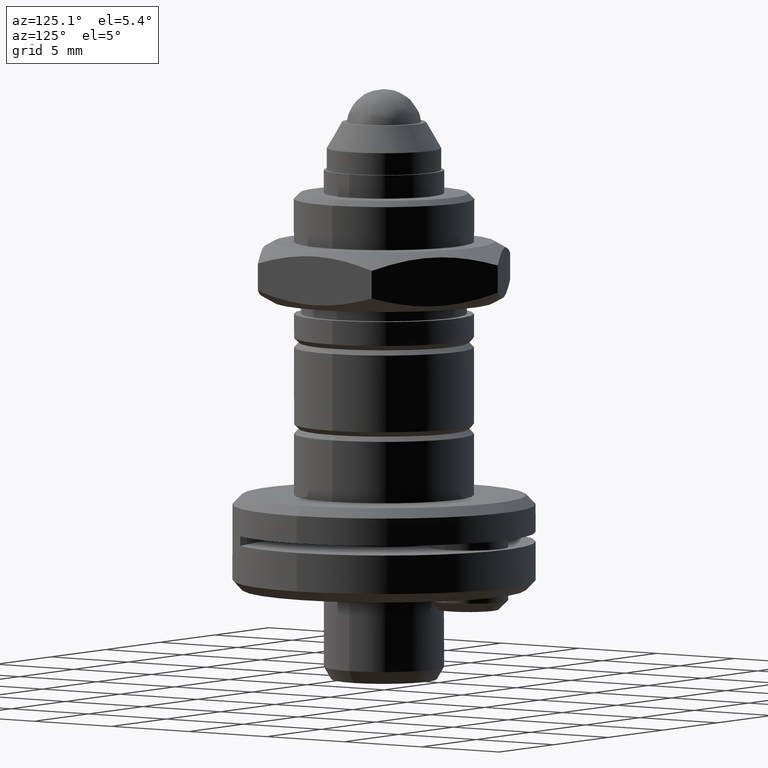
[diagram: clean part render]
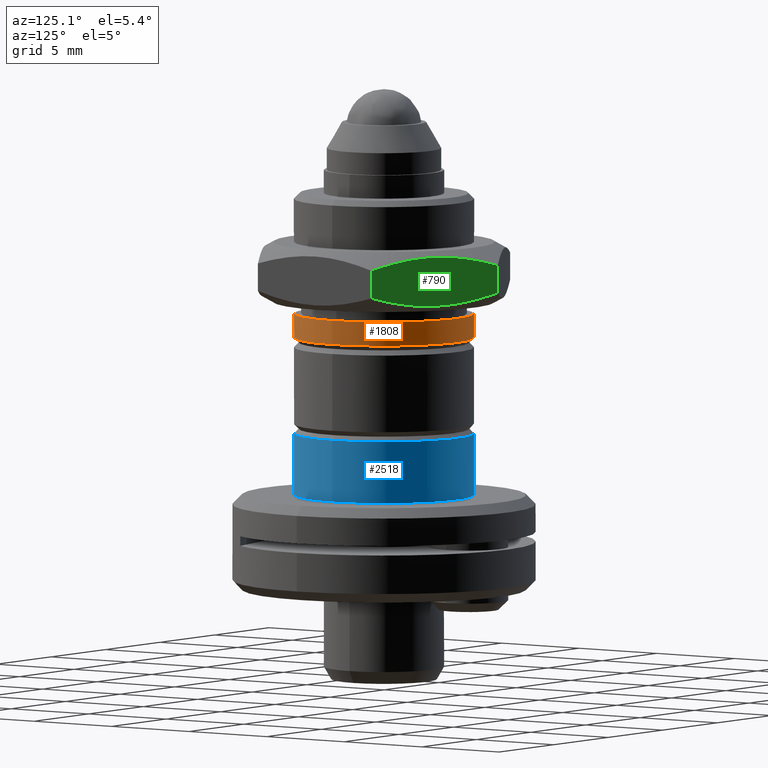
[diagram: same view with three faces highlighted in distinct colors, each labeled with its STEP entity id]
A machine part, auxiliary view with three faces highlighted in distinct colors.
Their STEP definitions:

[orange] entity #1808 — the highlighted cylindrical surface (bore or boss wall) has radius 4.7498 mm, axis along (0, 0, 1).
#17 = DIRECTION ( 'NONE',  ( 0.000000000000000000, -1.000000000000000000, 0.000000000000000000 ) ) ;
#121 = CYLINDRICAL_SURFACE ( 'NONE', #2018, 4.749800000000000466 ) ;
#133 = FACE_OUTER_BOUND ( 'NONE', #2351, .T. ) ;
#309 = EDGE_CURVE ( 'NONE', #2420, #2420, #1154, .T. ) ;
#380 = DIRECTION ( 'NONE',  ( 1.000000000000000000, 0.000000000000000000, 0.000000000000000000 ) ) ;
#431 = CARTESIAN_POINT ( 'NONE',  ( 0.000000000000000000, 0.000000000000000000, -13.15720000002329471 ) ) ;
#497 = CARTESIAN_POINT ( 'NONE',  ( 0.000000000000000000, 0.000000000000000000, -11.88719999999999999 ) ) ;
#677 = DIRECTION ( 'NONE',  ( 1.000000000000000000, 0.000000000000000000, 0.000000000000000000 ) ) ;
#845 = EDGE_CURVE ( 'NONE', #1375, #1375, #1765, .T. ) ;
#862 = DIRECTION ( 'NONE',  ( -0.000000000000000000, -0.000000000000000000, -1.000000000000000000 ) ) ;
#969 = CARTESIAN_POINT ( 'NONE',  ( 0.000000000000000000, -4.749799999956394458, -13.15720000002329471 ) ) ;
#1079 = AXIS2_PLACEMENT_3D ( 'NONE', #497, #2101, #677 ) ;
#1141 = EDGE_LOOP ( 'NONE', ( #2283 ) ) ;
#1154 = CIRCLE ( 'NONE', #2064, 4.749799999956394458 ) ;
#1361 = DIRECTION ( 'NONE',  ( 0.000000000000000000, 0.000000000000000000, 1.000000000000000000 ) ) ;
#1375 = VERTEX_POINT ( 'NONE', #1829 ) ;
#1765 = CIRCLE ( 'NONE', #1079, 4.749800000000000466 ) ;
#1808 = ADVANCED_FACE ( 'NONE', ( #133, #2222 ), #121, .T. ) ;
#1829 = CARTESIAN_POINT ( 'NONE',  ( 4.749800000000000466, 0.000000000000000000, -11.88719999999999999 ) ) ;
#1917 = ORIENTED_EDGE ( 'NONE', *, *, #845, .T. ) ;
#2018 = AXIS2_PLACEMENT_3D ( 'NONE', #2439, #1361, #380 ) ;
#2064 = AXIS2_PLACEMENT_3D ( 'NONE', #431, #862, #17 ) ;
#2101 = DIRECTION ( 'NONE',  ( -0.000000000000000000, -0.000000000000000000, -1.000000000000000000 ) ) ;
#2222 = FACE_OUTER_BOUND ( 'NONE', #1141, .T. ) ;
#2283 = ORIENTED_EDGE ( 'NONE', *, *, #309, .F. ) ;
#2351 = EDGE_LOOP ( 'NONE', ( #1917 ) ) ;
#2420 = VERTEX_POINT ( 'NONE', #969 ) ;
#2439 = CARTESIAN_POINT ( 'NONE',  ( 0.000000000000000000, 0.000000000000000000, 1.337328265961435836 ) ) ;

[blue] entity #2518 — the highlighted cylindrical surface (bore or boss wall) has radius 4.7498 mm, axis along (0, 0, 1).
#18 = VERTEX_POINT ( 'NONE', #2505 ) ;
#37 = VERTEX_POINT ( 'NONE', #1060 ) ;
#75 = AXIS2_PLACEMENT_3D ( 'NONE', #928, #1759, #729 ) ;
#181 = ORIENTED_EDGE ( 'NONE', *, *, #2644, .T. ) ;
#206 = AXIS2_PLACEMENT_3D ( 'NONE', #446, #1077, #1872 ) ;
#371 = CIRCLE ( 'NONE', #1362, 4.749800000000000466 ) ;
#391 = CARTESIAN_POINT ( 'NONE',  ( 0.000000000000000000, 0.000000000000000000, -18.23719999999999786 ) ) ;
#446 = CARTESIAN_POINT ( 'NONE',  ( 0.000000000000000000, 0.000000000000000000, 1.337328265961435836 ) ) ;
#729 = DIRECTION ( 'NONE',  ( 1.000000000000000000, 0.000000000000000000, 0.000000000000000000 ) ) ;
#928 = CARTESIAN_POINT ( 'NONE',  ( 0.000000000000000000, 0.000000000000000000, -21.49220000000000041 ) ) ;
#1051 = FACE_OUTER_BOUND ( 'NONE', #1524, .T. ) ;
#1060 = CARTESIAN_POINT ( 'NONE',  ( 4.749800000000001354, 0.000000000000000000, -21.49220000000000041 ) ) ;
#1077 = DIRECTION ( 'NONE',  ( 0.000000000000000000, 0.000000000000000000, 1.000000000000000000 ) ) ;
#1119 = CIRCLE ( 'NONE', #75, 4.749800000000001354 ) ;
#1302 = CYLINDRICAL_SURFACE ( 'NONE', #206, 4.749800000000000466 ) ;
#1362 = AXIS2_PLACEMENT_3D ( 'NONE', #391, #2667, #2268 ) ;
#1524 = EDGE_LOOP ( 'NONE', ( #2164 ) ) ;
#1641 = EDGE_LOOP ( 'NONE', ( #181 ) ) ;
#1759 = DIRECTION ( 'NONE',  ( 0.000000000000000000, 0.000000000000000000, 1.000000000000000000 ) ) ;
#1857 = EDGE_CURVE ( 'NONE', #18, #18, #371, .T. ) ;
#1872 = DIRECTION ( 'NONE',  ( 1.000000000000000000, 0.000000000000000000, 0.000000000000000000 ) ) ;
#1916 = FACE_OUTER_BOUND ( 'NONE', #1641, .T. ) ;
#2164 = ORIENTED_EDGE ( 'NONE', *, *, #1857, .T. ) ;
#2268 = DIRECTION ( 'NONE',  ( 1.000000000000000000, 0.000000000000000000, 0.000000000000000000 ) ) ;
#2505 = CARTESIAN_POINT ( 'NONE',  ( 4.749800000000000466, 0.000000000000000000, -18.23719999999999786 ) ) ;
#2518 = ADVANCED_FACE ( 'NONE', ( #1051, #1916 ), #1302, .T. ) ;
#2644 = EDGE_CURVE ( 'NONE', #37, #37, #1119, .T. ) ;
#2667 = DIRECTION ( 'NONE',  ( -0.000000000000000000, -0.000000000000000000, -1.000000000000000000 ) ) ;

[green] entity #790 — the highlighted planar face has unit normal (-0.5, -0.866, 0).
#1 = CARTESIAN_POINT ( 'NONE',  ( 1.455313926847094691E-13, 7.332348418709172755, -8.937653060721164167 ) ) ;
#13 = EDGE_CURVE ( 'NONE', #364, #816, #1021, .T. ) ;
#64 = CARTESIAN_POINT ( 'NONE',  ( 6.349999999999999645, 3.666174209353959768, -8.077199999999999491 ) ) ;
#134 = EDGE_CURVE ( 'NONE', #364, #802, #2057, .T. ) ;
#364 = VERTEX_POINT ( 'NONE', #456 ) ;
#401 = CARTESIAN_POINT ( 'NONE',  ( 3.710065976304290025, 5.190340828577599375, -10.94584580014166697 ) ) ;
#424 = ORIENTED_EDGE ( 'NONE', *, *, #2545, .F. ) ;
#456 = CARTESIAN_POINT ( 'NONE',  ( 6.350000000000942002, 3.666174209354503777, -8.937653060721208576 ) ) ;
#499 = DIRECTION ( 'NONE',  ( -0.000000000000000000, -0.000000000000000000, -1.000000000000000000 ) ) ;
#595 = CARTESIAN_POINT ( 'NONE',  ( 1.040614562266858112, 6.731549321060803948, -10.70697601216268779 ) ) ;
#619 = CARTESIAN_POINT ( 'NONE',  ( 5.309385398718746707, 4.266973329526373426, -8.622423978090150598 ) ) ;
#649 = CARTESIAN_POINT ( 'NONE',  ( 1.042466646458993118, 6.730480019753913190, -8.621855908812767311 ) ) ;
#661 = CARTESIAN_POINT ( 'NONE',  ( 3.720933469663062709, 5.184066478361493147, -8.370893383825873002 ) ) ;
#703 = CARTESIAN_POINT ( 'NONE',  ( 1.455313926847094691E-13, 7.332348418709172755, -8.937653060721164167 ) ) ;
#753 = CARTESIAN_POINT ( 'NONE',  ( 6.349999999999999645, 3.666174209353959768, -8.077199999999999491 ) ) ;
#776 = CARTESIAN_POINT ( 'NONE',  ( 6.349999999999999645, 3.666174242674693939, -10.39174692971212011 ) ) ;
#790 = ADVANCED_FACE ( 'NONE', ( #1473 ), #1941, .F. ) ;
#794 = ORIENTED_EDGE ( 'NONE', *, *, #134, .F. ) ;
#802 = VERTEX_POINT ( 'NONE', #703 ) ;
#816 = VERTEX_POINT ( 'NONE', #2551 ) ;
#870 = CARTESIAN_POINT ( 'NONE',  ( 2.639933959897847959, 5.808181836318321523, -8.383554203957617190 ) ) ;
#924 = EDGE_LOOP ( 'NONE', ( #794, #1833, #2443, #424 ) ) ;
#986 = CARTESIAN_POINT ( 'NONE',  ( 5.830935958702113453, 3.965855973323964001, -10.56476828298862358 ) ) ;
#1021 = LINE ( 'NONE', #753, #1408 ) ;
#1030 = CARTESIAN_POINT ( 'NONE',  ( 5.307533277096408320, 4.268042652443604368, -10.70754410959788494 ) ) ;
#1129 = EDGE_CURVE ( 'NONE', #1227, #816, #2484, .T. ) ;
#1204 = CARTESIAN_POINT ( 'NONE',  ( 0.5184175274064666272, 7.033039919707489318, -10.56455278415059951 ) ) ;
#1217 = CARTESIAN_POINT ( 'NONE',  ( 2.629066476214607651, 5.814456180948253561, -10.95850661229923340 ) ) ;
#1227 = VERTEX_POINT ( 'NONE', #1513 ) ;
#1255 = CARTESIAN_POINT ( 'NONE',  ( 2.095898543574923778, 6.122280830381066075, -10.90427832816657627 ) ) ;
#1408 = VECTOR ( 'NONE', #2225, 1000.000000000000000 ) ;
#1448 = CARTESIAN_POINT ( 'NONE',  ( 4.254101407321498662, 4.876241826031103344, -8.425121665177213615 ) ) ;
#1454 = CARTESIAN_POINT ( 'NONE',  ( -2.885595593049908021E-08, 7.332348435368240658, -10.39174692971229064 ) ) ;
#1466 = CARTESIAN_POINT ( 'NONE',  ( 0.5190639609765594908, 7.032666701111782714, -8.764631740393472370 ) ) ;
#1473 = FACE_OUTER_BOUND ( 'NONE', #924, .T. ) ;
#1513 = CARTESIAN_POINT ( 'NONE',  ( -2.885595593049908021E-08, 7.332348435368240658, -10.39174692971229064 ) ) ;
#1703 = CARTESIAN_POINT ( 'NONE',  ( 1.837029972698696056, 6.271738669461197624, -8.473633451696272800 ) ) ;
#1735 = DIRECTION ( 'NONE',  ( -0.5000000000000167644, -0.8660254037844289376, 0.000000000000000000 ) ) ;
#1833 = ORIENTED_EDGE ( 'NONE', *, *, #13, .T. ) ;
#1888 = CARTESIAN_POINT ( 'NONE',  ( 2.103465585201813148, 6.117911996860811996, -8.435248392561772945 ) ) ;
#1941 = PLANE ( 'NONE',  #2498 ) ;
#1944 = VECTOR ( 'NONE', #499, 1000.000000000000000 ) ;
#1981 = CARTESIAN_POINT ( 'NONE',  ( 1.405126015541213746E-13, 7.332348418708166449, -8.077199999999999491 ) ) ;
#2055 = CARTESIAN_POINT ( 'NONE',  ( 3.438862773081391655, 5.346920070963430582, -10.95910243954987529 ) ) ;
#2057 = B_SPLINE_CURVE_WITH_KNOTS ( 'NONE', 3,
 ( #2509, #2323, #619, #1448, #661, #2496, #870, #1888, #1703, #649, #1466, #1 ),
 .UNSPECIFIED., .F., .F.,
 ( 4, 2, 2, 2, 2, 4 ),
 ( 1.613843466761046752E-15, 0.001851315103361937144, 0.003702630206722260127, 0.004628287758402422486, 0.005553945310082583978, 0.007405260413442906961 ),
 .UNSPECIFIED. ) ;
#2084 = CARTESIAN_POINT ( 'NONE',  ( 4.246534346621254841, 4.880610670563365616, -10.89415161611917071 ) ) ;
#2225 = DIRECTION ( 'NONE',  ( -0.000000000000000000, -0.000000000000000000, -1.000000000000000000 ) ) ;
#2323 = CARTESIAN_POINT ( 'NONE',  ( 5.831582409655795551, 3.965482744691837258, -8.764847197270878354 ) ) ;
#2334 = DIRECTION ( 'NONE',  ( 0.8660254037844289376, -0.5000000000000167644, 0.000000000000000000 ) ) ;
#2443 = ORIENTED_EDGE ( 'NONE', *, *, #1129, .F. ) ;
#2484 = B_SPLINE_CURVE_WITH_KNOTS ( 'NONE', 3,
 ( #1454, #1204, #595, #1255, #1217, #2055, #401, #2084, #2647, #1030, #986, #776 ),
 .UNSPECIFIED., .F., .F.,
 ( 4, 2, 2, 2, 2, 4 ),
 ( 3.434922500509765702E-11, 0.001851315121222546836, 0.003702630208095868385, 0.004628287751532529810, 0.005553945294969192537, 0.007405260381842519724 ),
 .UNSPECIFIED. ) ;
#2496 = CARTESIAN_POINT ( 'NONE',  ( 2.911137165393000270, 5.651602592620598386, -8.370297562367492006 ) ) ;
#2498 = AXIS2_PLACEMENT_3D ( 'NONE', #64, #1735, #2334 ) ;
#2509 = CARTESIAN_POINT ( 'NONE',  ( 6.350000000000942002, 3.666174209354503777, -8.937653060721208576 ) ) ;
#2545 = EDGE_CURVE ( 'NONE', #802, #1227, #2553, .T. ) ;
#2551 = CARTESIAN_POINT ( 'NONE',  ( 6.349999999999999645, 3.666174242674693939, -10.39174692971212011 ) ) ;
#2553 = LINE ( 'NONE', #1981, #1944 ) ;
#2647 = CARTESIAN_POINT ( 'NONE',  ( 4.512969957013535094, 4.726783999181670914, -10.85576655939430957 ) ) ;